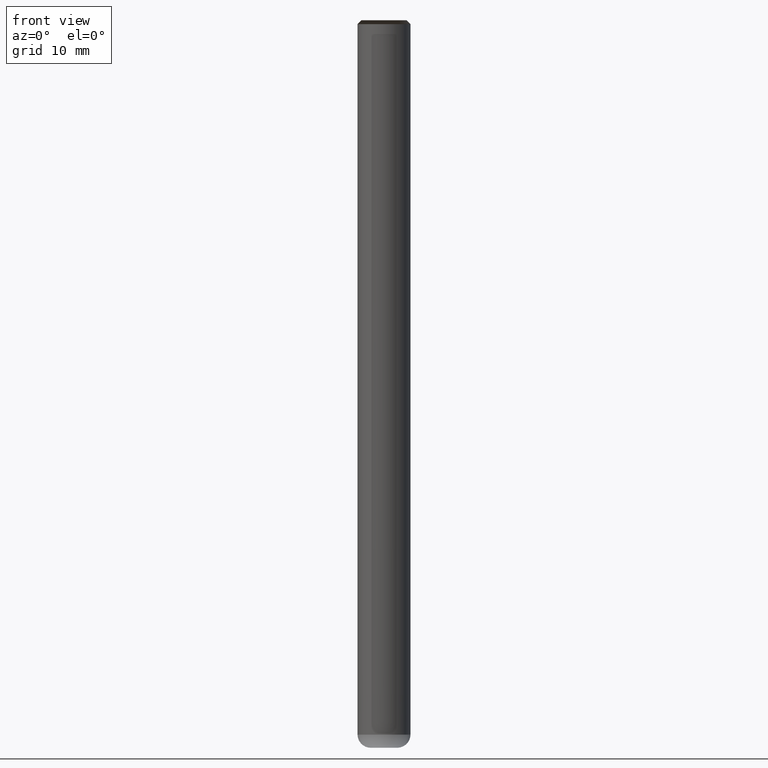
[diagram: clean part render]
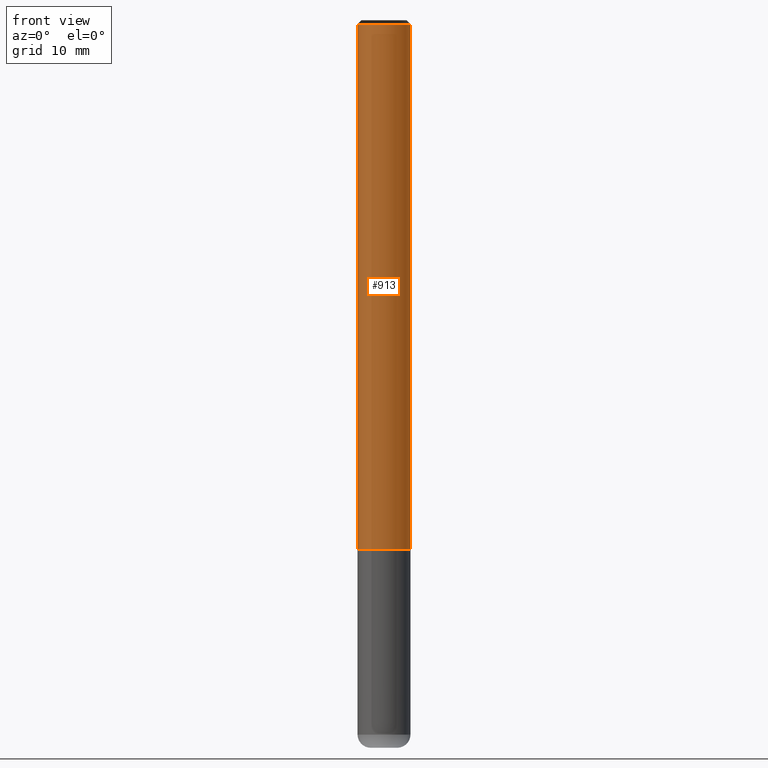
[diagram: same view with one face highlighted and labeled with its STEP entity id]
A machine part, front view. The second image highlights one B-rep face of the part: STEP entity #913.
In plain terms, the highlighted face is a freeform B-spline surface patch.
Its self-contained STEP definition (entity closure, byte-faithful):
#586=CARTESIAN_POINT('',(4.0,0.0,0.0));
#590=CARTESIAN_POINT('',(-4.0,0.0,0.0));
#591=CARTESIAN_POINT('',(4.0,0.0,79.4));
#595=CARTESIAN_POINT('',(-4.0,0.0,79.4));
#602=CARTESIAN_POINT('',(-4.0,-4.0,0.0));
#603=CARTESIAN_POINT('',(0.0,-4.0,0.0));
#604=CARTESIAN_POINT('',(4.0,-4.0,0.0));
#605=CARTESIAN_POINT('',(-4.0,-4.0,79.4));
#606=CARTESIAN_POINT('',(0.0,-4.0,79.4));
#607=CARTESIAN_POINT('',(4.0,-4.0,79.4));
#894=(
BOUNDED_SURFACE()
B_SPLINE_SURFACE(1,2,(
(#590,#602,#603,#604,#586),
(#595,#605,#606,#607,#591)
), .UNSPECIFIED.,.F.,.F.,.F.)
B_SPLINE_SURFACE_WITH_KNOTS((2,2),(3,2,3),(
0.0,1.0),(
0.0,0.5,1.0), .UNSPECIFIED.)
GEOMETRIC_REPRESENTATION_ITEM()
RATIONAL_B_SPLINE_SURFACE(((1.0,0.707106781187,1.0,0.707106781187,1.0),
(1.0,0.707106781187,1.0,0.707106781187,1.0)
))
REPRESENTATION_ITEM('')
SURFACE()
);
#895=(
BOUNDED_CURVE()
B_SPLINE_CURVE(1,(#595,#590),.UNSPECIFIED.,.F.,.F.)
B_SPLINE_CURVE_WITH_KNOTS((2,2),
(0.0,1.0),.UNSPECIFIED.)
CURVE()
GEOMETRIC_REPRESENTATION_ITEM()
RATIONAL_B_SPLINE_CURVE((1.0,1.0))
REPRESENTATION_ITEM('')
);
#896=(
BOUNDED_CURVE()
B_SPLINE_CURVE(2,(#590,#602,#603,#604,#586),.UNSPECIFIED.,.F.,.F.)
B_SPLINE_CURVE_WITH_KNOTS((3,2,3),
(0.0,0.5,1.0),.UNSPECIFIED.)
CURVE()
GEOMETRIC_REPRESENTATION_ITEM()
RATIONAL_B_SPLINE_CURVE((1.0,0.707106781187,1.0,0.707106781187,1.0))
REPRESENTATION_ITEM('')
);
#897=(
BOUNDED_CURVE()
B_SPLINE_CURVE(1,(#586,#591),.UNSPECIFIED.,.F.,.F.)
B_SPLINE_CURVE_WITH_KNOTS((2,2),
(0.0,1.0),.UNSPECIFIED.)
CURVE()
GEOMETRIC_REPRESENTATION_ITEM()
RATIONAL_B_SPLINE_CURVE((1.0,1.0))
REPRESENTATION_ITEM('')
);
#898=(
BOUNDED_CURVE()
B_SPLINE_CURVE(2,(#591,#607,#606,#605,#595),.UNSPECIFIED.,.F.,.F.)
B_SPLINE_CURVE_WITH_KNOTS((3,2,3),
(0.0,0.5,1.0),.UNSPECIFIED.)
CURVE()
GEOMETRIC_REPRESENTATION_ITEM()
RATIONAL_B_SPLINE_CURVE((1.0,0.707106781187,1.0,0.707106781187,1.0))
REPRESENTATION_ITEM('')
);
#899=VERTEX_POINT('',#586);
#900=VERTEX_POINT('',#590);
#901=VERTEX_POINT('',#591);
#902=VERTEX_POINT('',#595);
#903=EDGE_CURVE('',#902,#900,#895,.T.);
#904=EDGE_CURVE('',#900,#899,#896,.T.);
#905=EDGE_CURVE('',#899,#901,#897,.T.);
#906=EDGE_CURVE('',#901,#902,#898,.T.);
#907=ORIENTED_EDGE('',*,*,#903,.T.);
#908=ORIENTED_EDGE('',*,*,#904,.T.);
#909=ORIENTED_EDGE('',*,*,#905,.T.);
#910=ORIENTED_EDGE('',*,*,#906,.T.);
#911=EDGE_LOOP('',(#907,#908,#909,#910));
#912=FACE_OUTER_BOUND('',#911,.T.);
#913=ADVANCED_FACE('',(#912),#894,.T.);